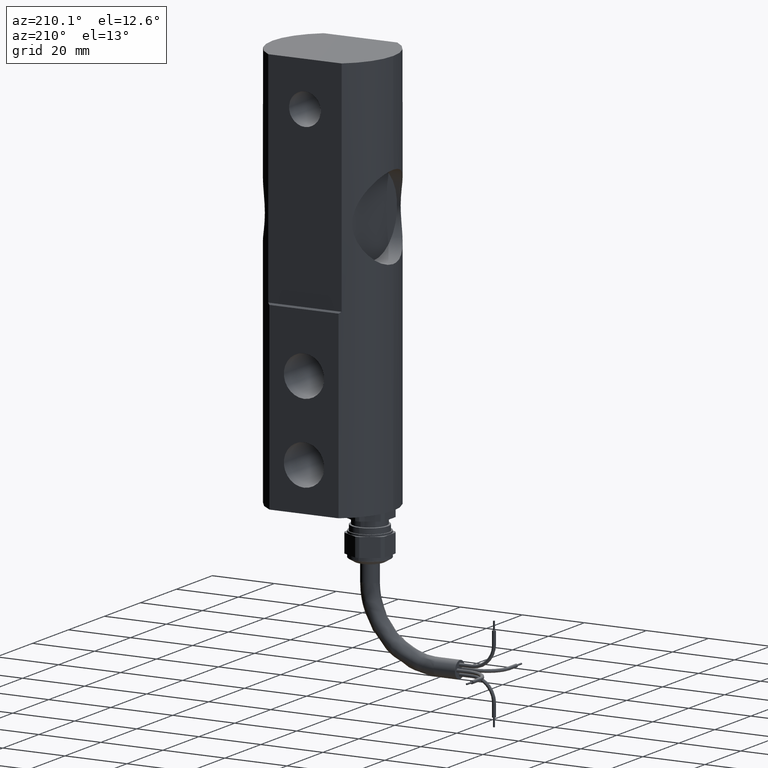
[diagram: clean part render]
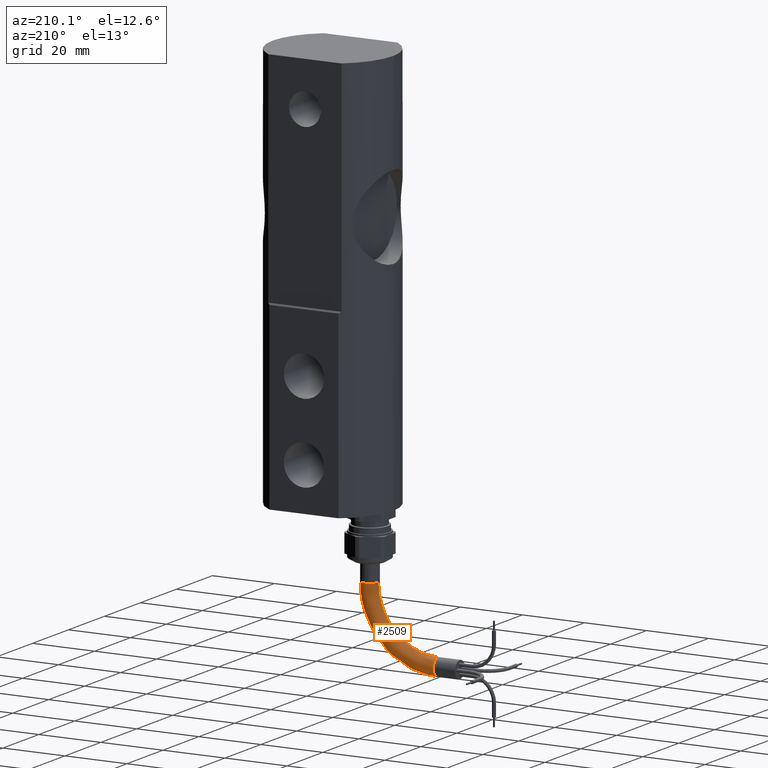
[diagram: same view with one face highlighted and labeled with its STEP entity id]
A machine part, auxiliary view. The second image highlights one B-rep face of the part: STEP entity #2509.
In plain terms, the highlighted face is a freeform B-spline surface patch.
Its self-contained STEP definition (entity closure, byte-faithful):
#476 = DIRECTION ( 'NONE',  ( 2.929481985561874271E-34, 1.000000000000000000, -3.013039420990648003E-17 ) ) ;
#534 = VERTEX_POINT ( 'NONE', #7714 ) ;
#655 = CARTESIAN_POINT ( 'NONE',  ( -0.3641732283465041742, 0.2165354330708658404, -3.385826771653543954 ) ) ;
#798 = VERTEX_POINT ( 'NONE', #4467 ) ;
#808 = VERTEX_POINT ( 'NONE', #4959 ) ;
#831 = EDGE_CURVE ( 'NONE', #534, #808, #3144, .T. ) ;
#848 = EDGE_CURVE ( 'NONE', #798, #6460, #5982, .T. ) ;
#988 = CIRCLE ( 'NONE', #1381, 0.7578740157480315931 ) ;
#1058 = CARTESIAN_POINT ( 'NONE',  ( -0.5807086614173702088, -2.777700805885097702E-16, -3.385826771653543510 ) ) ;
#1223 = EDGE_CURVE ( 'NONE', #6460, #534, #5516, .T. ) ;
#1224 = CARTESIAN_POINT ( 'NONE',  ( -0.3641732283465041742, -2.817094130048576215E-16, -3.956622611467161654 ) ) ;
#1285 = DIRECTION ( 'NONE',  ( 0.000000000000000000, -3.013039420990646770E-17, -1.000000000000000000 ) ) ;
#1314 = CARTESIAN_POINT ( 'NONE',  ( -1.338582677165402357, -2.645111093378986689E-16, -3.385826771653543510 ) ) ;
#1381 = AXIS2_PLACEMENT_3D ( 'NONE', #5976, #476, #7844 ) ;
#1473 = DIRECTION ( 'NONE',  ( 6.123233995736766036E-17, -3.013039420990648003E-17, -1.000000000000000000 ) ) ;
#1863 = CARTESIAN_POINT ( 'NONE',  ( -1.338582677165402135, 0.2165354330708658404, -4.143700787401575880 ) ) ;
#2308 = CARTESIAN_POINT ( 'NONE',  ( -1.338582677165401913, -3.006051234444428714E-16, -4.143700787401575880 ) ) ;
#2509 = ADVANCED_FACE ( 'NONE', ( #4138 ), #4274, .T. ) ;
#2510 = CARTESIAN_POINT ( 'NONE',  ( -0.3641732283465041187, 0.2165354330708657848, -3.956622611467162098 ) ) ;
#2898 = CARTESIAN_POINT ( 'NONE',  ( -0.8946303573103652207, -3.006051234444428714E-16, -4.143700787401575880 ) ) ;
#3107 = CARTESIAN_POINT ( 'NONE',  ( -0.7677868373517837686, 0.2165354330708657848, -4.360236220472441637 ) ) ;
#3144 = CIRCLE ( 'NONE', #4417, 0.1082677165354331700 ) ;
#3498 = CARTESIAN_POINT ( 'NONE',  ( -0.5807086614173702088, -2.911465389961445604E-16, -3.829779091508580091 ) ) ;
#3541 = AXIS2_PLACEMENT_3D ( 'NONE', #6391, #1473, #3905 ) ;
#3655 = CARTESIAN_POINT ( 'NONE',  ( -0.7677868373517835465, -2.938704501526698765E-16, -4.360236220472441637 ) ) ;
#3680 = EDGE_LOOP ( 'NONE', ( #6777, #3695, #6788, #4231 ) ) ;
#3695 = ORIENTED_EDGE ( 'NONE', *, *, #848, .T. ) ;
#3905 = DIRECTION ( 'NONE',  ( 1.000000000000000000, 0.000000000000000000, 0.000000000000000000 ) ) ;
#4138 = FACE_OUTER_BOUND ( 'NONE', #3680, .T. ) ;
#4231 = ORIENTED_EDGE ( 'NONE', *, *, #831, .T. ) ;
#4274 =( BOUNDED_SURFACE ( )  B_SPLINE_SURFACE ( 3, 3, ( 
 ( #1058, #3498, #2898, #2308 ),
 ( #7203, #6149, #7371, #1863 ),
 ( #655, #2510, #3107, #4907 ),
 ( #5550, #1224, #3655, #6108 ) ),
 .UNSPECIFIED., .F., .F., .F. ) 
 B_SPLINE_SURFACE_WITH_KNOTS ( ( 4, 4 ),
 ( 4, 4 ),
 ( 0.000000000000000000, 1.000000000000000000 ),
 ( 0.000000000000000000, 1.000000000000000000 ),
 .UNSPECIFIED. ) 
 GEOMETRIC_REPRESENTATION_ITEM ( )  RATIONAL_B_SPLINE_SURFACE ( (
 ( 1.000000000000000000, 0.8047378541243649375, 0.8047378541243649375, 1.000000000000000000),
 ( 0.3333333333333333703, 0.2682459513747883495, 0.2682459513747883495, 0.3333333333333333703),
 ( 0.3333333333333333703, 0.2682459513747883495, 0.2682459513747883495, 0.3333333333333333703),
 ( 1.000000000000000000, 0.8047378541243649375, 0.8047378541243649375, 1.000000000000000000) ) ) 
 REPRESENTATION_ITEM ( '' )  SURFACE ( )  );
#4304 = EDGE_CURVE ( 'NONE', #798, #808, #988, .T. ) ;
#4417 = AXIS2_PLACEMENT_3D ( 'NONE', #7537, #6766, #1285 ) ;
#4467 = CARTESIAN_POINT ( 'NONE',  ( -0.5807086614173702088, -2.603592833640926818E-16, -3.385826771653543510 ) ) ;
#4604 = AXIS2_PLACEMENT_3D ( 'NONE', #1314, #6115, #6718 ) ;
#4907 = CARTESIAN_POINT ( 'NONE',  ( -1.338582677165402135, 0.2165354330708658126, -4.360236220472441637 ) ) ;
#4959 = CARTESIAN_POINT ( 'NONE',  ( -1.338582677165401913, -2.906083011732507493E-16, -4.143700787401574992 ) ) ;
#5516 = CIRCLE ( 'NONE', #4604, 0.9744094488188980163 ) ;
#5550 = CARTESIAN_POINT ( 'NONE',  ( -0.3641732283465041742, -2.645111093378986689E-16, -3.385826771653543510 ) ) ;
#5922 = CARTESIAN_POINT ( 'NONE',  ( -0.3641732283465041742, -2.471003121134814819E-16, -3.385826771653543510 ) ) ;
#5976 = CARTESIAN_POINT ( 'NONE',  ( -1.338582677165402357, -2.777700805885097702E-16, -3.385826771653543510 ) ) ;
#5982 = CIRCLE ( 'NONE', #3541, 0.1082677165354330312 ) ;
#6108 = CARTESIAN_POINT ( 'NONE',  ( -1.338582677165401913, -2.938704501526698272E-16, -4.360236220472441637 ) ) ;
#6115 = DIRECTION ( 'NONE',  ( 2.929481985561874271E-34, 1.000000000000000000, -3.013039420990648003E-17 ) ) ;
#6149 = CARTESIAN_POINT ( 'NONE',  ( -0.5807086614173703198, 0.2165354330708658126, -3.829779091508580979 ) ) ;
#6391 = CARTESIAN_POINT ( 'NONE',  ( -0.4724409448819371637, -2.645111093378986689E-16, -3.385826771653543510 ) ) ;
#6460 = VERTEX_POINT ( 'NONE', #5922 ) ;
#6718 = DIRECTION ( 'NONE',  ( 0.000000000000000000, 3.013039420990648003E-17, 1.000000000000000000 ) ) ;
#6766 = DIRECTION ( 'NONE',  ( 1.000000000000000000, 3.396960884064803638E-33, 1.224646799147353207E-16 ) ) ;
#6777 = ORIENTED_EDGE ( 'NONE', *, *, #4304, .F. ) ;
#6788 = ORIENTED_EDGE ( 'NONE', *, *, #1223, .T. ) ;
#7203 = CARTESIAN_POINT ( 'NONE',  ( -0.5807086614173702088, 0.2165354330708658404, -3.385826771653543954 ) ) ;
#7371 = CARTESIAN_POINT ( 'NONE',  ( -0.8946303573103652207, 0.2165354330708658126, -4.143700787401575880 ) ) ;
#7537 = CARTESIAN_POINT ( 'NONE',  ( -1.338582677165401913, -2.906083011732507493E-16, -4.251968503937008315 ) ) ;
#7714 = CARTESIAN_POINT ( 'NONE',  ( -1.338582677165401913, -2.773493299226395494E-16, -4.360236220472441637 ) ) ;
#7844 = DIRECTION ( 'NONE',  ( 0.000000000000000000, 3.013039420990645538E-17, 1.000000000000000000 ) ) ;